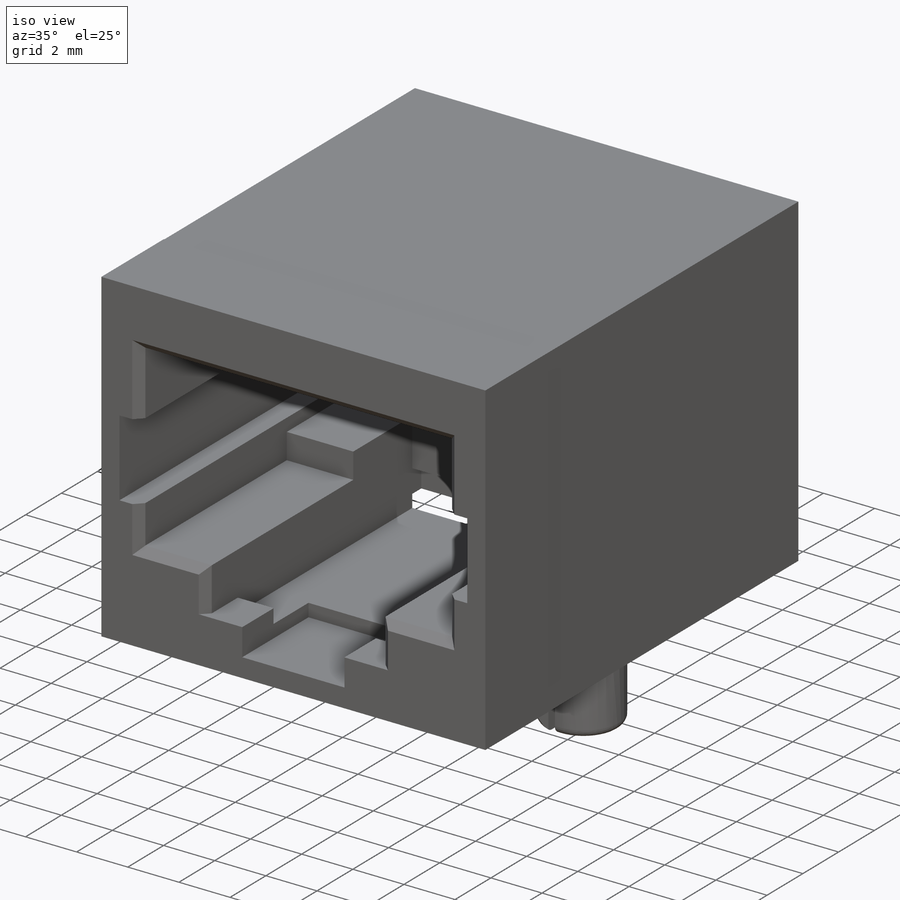
[diagram: iso view]
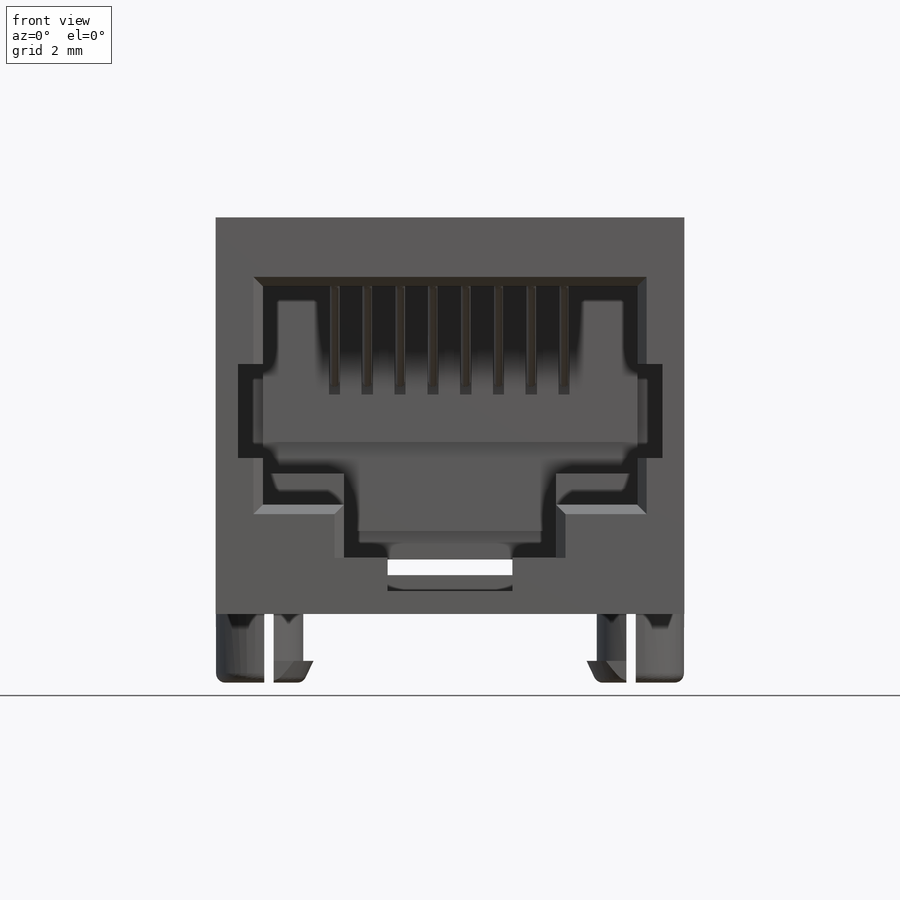
[diagram: front view]
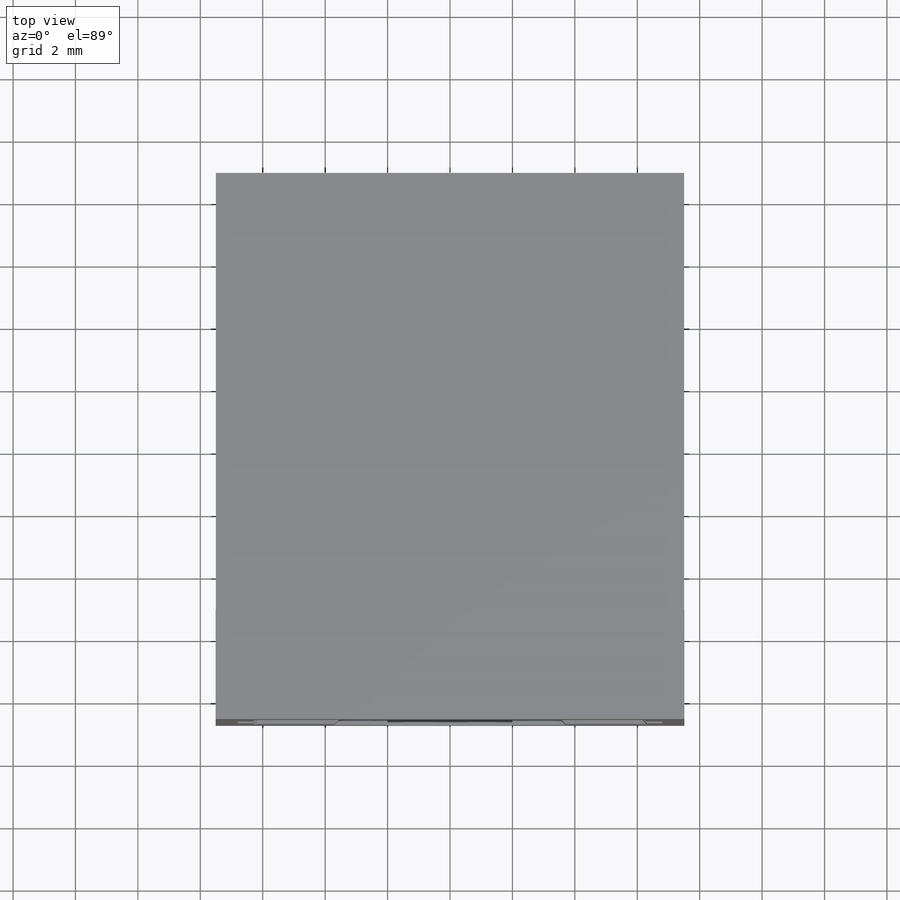
[diagram: top view]
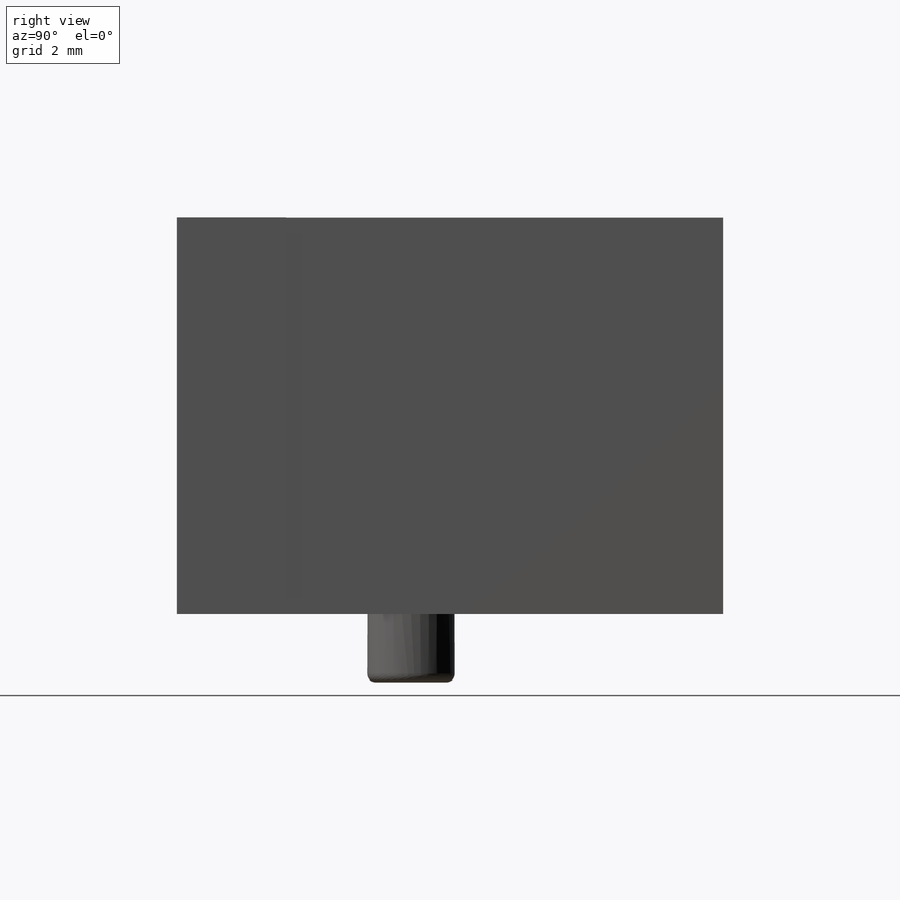
[diagram: right view]
SOLIDWORKS PART (.sldprt)
format: sldprt  version: not decoded by parser v0  size: 1,206,784 bytes
history: native  units: mm
features: sketch x16, cut_extrude x9, plane x5, extrude x4, material x1, chamfer x1, fillet x1, sweep x1, pattern_linear x1 (+12 scaffold rows collapsed)
feature tree (51):
  scaffold x12  (default folders/planes/origin — collapsed)
  material  "Material <not specified>"
  sketch  "Sketch1"  dims[D1=17.5mm D2=15.0mm D3=8.75mm D4=7.5mm]
  extrude  "Extrude1"  Depth=12.7mm
  sketch  "Sketch2"  dims[D1=12.0mm D2=6.0mm D3=6.0mm D4=2.2mm D5=6.8mm D6=3.4mm D7=8.7mm D8=0.7mm D9=0.7mm D10=3.0mm D11=0.5mm]
  cut_extrude  "Cut-Extrude1"  Depth=11mm
  sketch  "Sketch3"  dims[D1=1.0mm]
  cut_extrude  "Cut-Extrude2"  Depth=8.2mm
  sketch  "Sketch4"  dims[D1=4.0mm D2=2.0mm]
  cut_extrude  "Cut-Extrude3"  Depth=3.7mm
  plane  "Plane1"  Offset=7mm
  sketch  "Sketch5"
  cut_extrude  "Cut-Extrude4"  Depth=1mm
  sketch  "Sketch6"
  cut_extrude  "Cut-Extrude5"  Depth=1mm
  sketch  "Sketch7"  dims[D1=1.0mm]
  cut_extrude  "Cut-Extrude6"  Depth=0.5mm
  sketch  "Sketch8"  dims[D1=0.8mm D2=0.8mm]
  cut_extrude  "Cut-Extrude7"  Depth=0.5mm
  chamfer  "Chamfer1"  Distance=0.3mm Angle=45deg
  sketch  "Sketch9"  dims[D1=0.01mm]
  extrude  "Extrude2"  Depth=3.5mm
  sketch  "Sketch10"  dims[D2=2.8mm D1=7.5mm]
  extrude  "Extrude3"  Depth=2.2mm
  sketch  "Sketch12"  dims[D1=0.0mm D2=0.0mm]
  extrude  "Extrude4"  Depth=1.5mm
  sketch  "Sketch11"  dims[D1=0.3mm D2=1.55mm D3=1.55mm]
  cut_extrude  "Cut-Extrude8"  [1 undecoded]
  fillet  "Fillet1"  Radius=0.3mm
  plane  "Plane2"  Offset=3.7mm
  sketch  "Sketch13"
  plane  "Plane4"
  plane  "Plane5"  Offset=3.7mm
  sketch  "Sketch16"  dims[D1=1.25mm D2=~0.546162mm D3=0.55mm]
  cut_extrude  "Cut-Extrude9"  Depth=0.18mm
  sketch  "Sketch15"  dims[D1=~0.129086mm]
  sweep  "Sweep2"
  pattern_linear  "LPattern1"  Count1=8 Count2=1 Spacing1=1.05mm Spacing2=50mm
  plane  "Board Plane"  Offset=0.2mm
  sketch  "Component_Outline"
decode coverage: 27 of 33 modeling features carry decoded parameters
note: ~ marks probable driven/reference dimensions
note: 1 parameter value undecoded
note: suppression state not decoded; provenance and decode notes live in map.json
